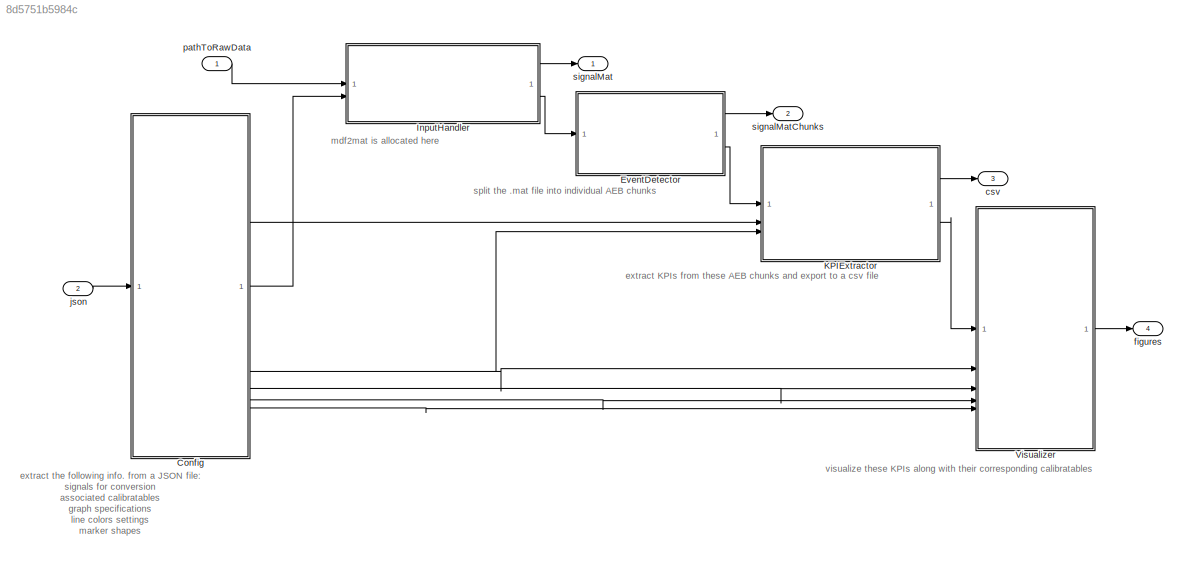
MODEL slx_8d5751b5984c
KIND model
CONFIG AbsTol = auto
CONFIG EnableMultiTasking = off
CONFIG FixedStep = auto
CONFIG MaxStep = auto
CONFIG MinStep = auto
CONFIG RelTol = 1e-3
CONFIG SampleTimeConstraint = Unconstrained
CONFIG SolverName = VariableStepAuto
CONFIG StartTime = 0.0
CONFIG StopTime = 10.0
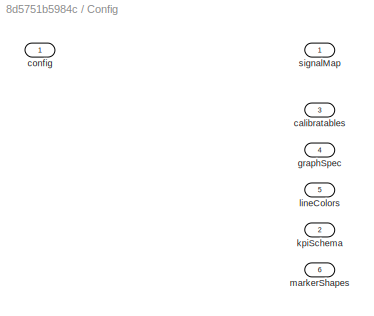
BLOCK [SubSystem] Config
BLOCK [Outport] Config/calibratables
  Port = 3
BLOCK [Inport] Config/config
BLOCK [Outport] Config/graphSpec
  Port = 4
BLOCK [Outport] Config/kpiSchema
  Port = 2
BLOCK [Outport] Config/lineColors
  Port = 5
BLOCK [Outport] Config/markerShapes
  Port = 6
BLOCK [Outport] Config/signalMap
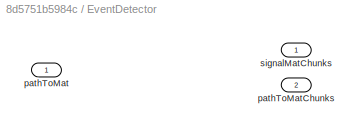
BLOCK [SubSystem] EventDetector
  TreatAsAtomicUnit = on
BLOCK [Inport] EventDetector/pathToMat
BLOCK [Outport] EventDetector/pathToMatChunks
  Port = 2
BLOCK [Outport] EventDetector/signalMatChunks
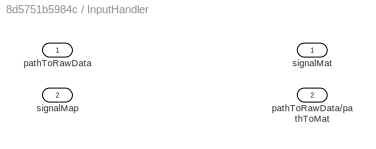
BLOCK [SubSystem] InputHandler
BLOCK [Inport] InputHandler/pathToRawData
BLOCK [Outport] InputHandler/pathToRawData//pathToMat
  Port = 2
BLOCK [Inport] InputHandler/signalMap
  Port = 2
BLOCK [Outport] InputHandler/signalMat
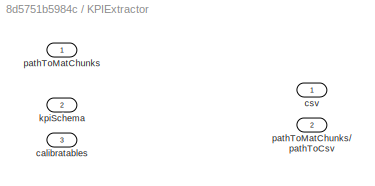
BLOCK [SubSystem] KPIExtractor
  AutoFrameSizeCalculation = on
BLOCK [Inport] KPIExtractor/calibratables
  Port = 3
BLOCK [Outport] KPIExtractor/csv
  VectorParamsAs1DForOutWhenUnconnected = off
BLOCK [Inport] KPIExtractor/kpiSchema
  Port = 2
BLOCK [Inport] KPIExtractor/pathToMatChunks
BLOCK [Outport] KPIExtractor/pathToMatChunks//pathToCsv
  Port = 2
  VectorParamsAs1DForOutWhenUnconnected = off
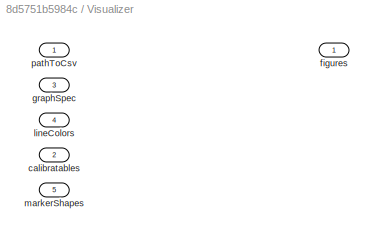
BLOCK [SubSystem] Visualizer
BLOCK [Inport] Visualizer/calibratables
  Port = 2
BLOCK [Outport] Visualizer/figures
BLOCK [Inport] Visualizer/graphSpec
  Port = 3
BLOCK [Inport] Visualizer/lineColors
  Port = 4
BLOCK [Inport] Visualizer/markerShapes
  Port = 5
BLOCK [Inport] Visualizer/pathToCsv
BLOCK [Outport] csv
  Port = 3
  VectorParamsAs1DForOutWhenUnconnected = off
BLOCK [Outport] figures
  Port = 4
  VectorParamsAs1DForOutWhenUnconnected = off
BLOCK [Inport] json
  Port = 2
BLOCK [Inport] pathToRawData
BLOCK [Outport] signalMat
  VectorParamsAs1DForOutWhenUnconnected = off
BLOCK [Outport] signalMatChunks
  Port = 2
  VectorParamsAs1DForOutWhenUnconnected = off
ANNOTATION (root): extract the following info. from a JSON file: signals for conversion associated calibratables graph specifications line colors settings marker shapes kpiSchema
ANNOTATION (root): extract KPIs from these AEB chunks and export to a csv file
ANNOTATION (root): mdf2mat is allocated here
ANNOTATION (root): split the .mat file into individual AEB chunks
ANNOTATION (root): visualize these KPIs along with their corresponding calibratables
LINE Config:1 -> InputHandler:2
LINE Config:2 -> KPIExtractor:2
NET Config:3 -> KPIExtractor:3, Visualizer:2
LINE Config:4 -> Visualizer:3
LINE Config:5 -> Visualizer:4
LINE Config:6 -> Visualizer:5
LINE EventDetector:1 -> signalMatChunks:1
LINE EventDetector:2 -> KPIExtractor:1
LINE InputHandler:1 -> signalMat:1
LINE InputHandler:2 -> EventDetector:1
LINE KPIExtractor:1 -> csv:1
LINE KPIExtractor:2 -> Visualizer:1
LINE Visualizer:1 -> figures:1
LINE json:1 -> Config:1
LINE pathToRawData:1 -> InputHandler:1
note: NET lines group one-source signal fan-out (src -> all destinations, sorted); 1:1 wires keep LINE
